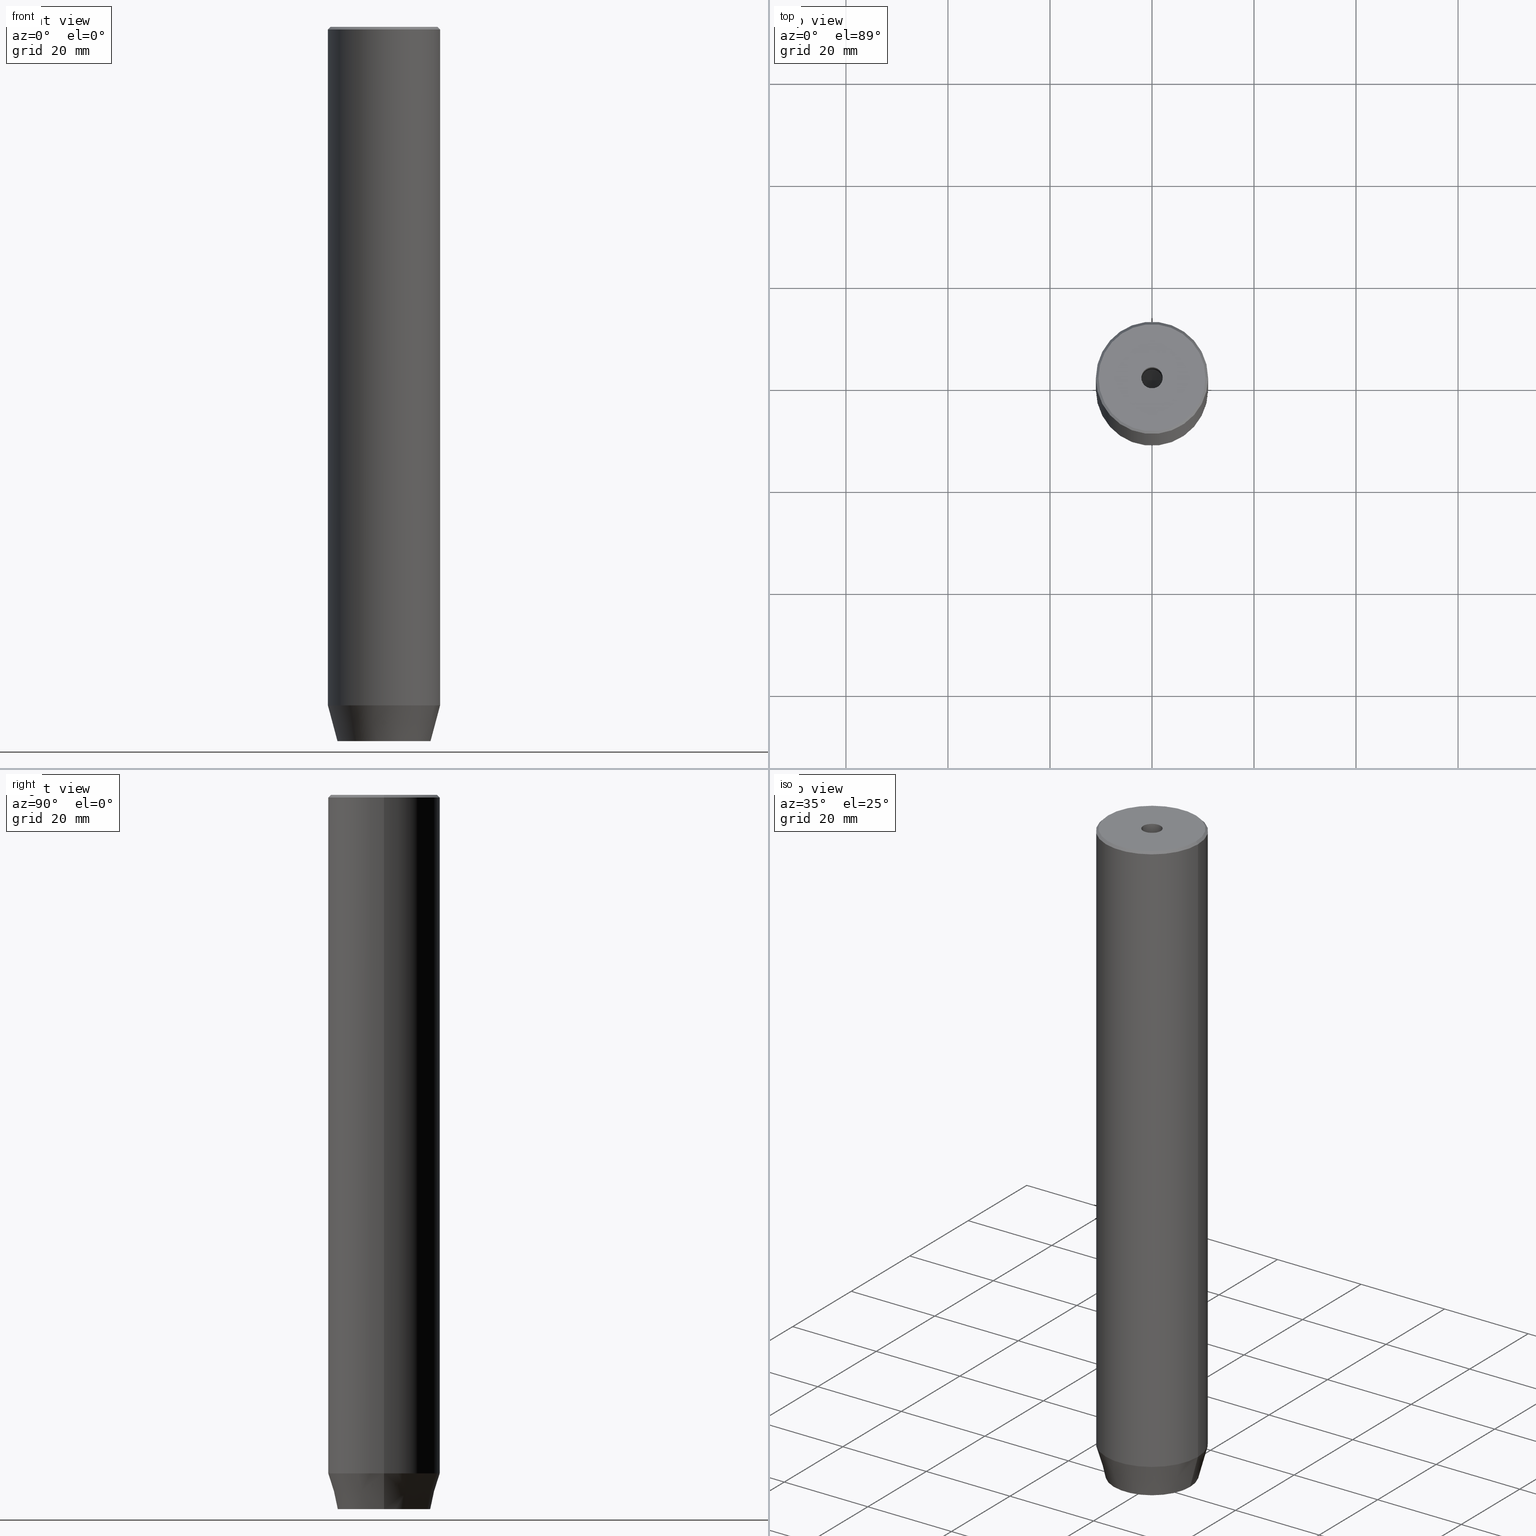
[diagram: canonical four-view strip — front | top / right | iso, engineering-drawing reading convention]
A machine part, canonical four-view strip (front | top / right | iso — engineering-drawing reading convention). The complete STEP part file that produces these views, byte-faithful:
ISO-10303-21;
HEADER;
FILE_DESCRIPTION (( 'STEP AP203' ),
    '1' );
FILE_NAME ('3e3e.STEP',
    '2024-01-02T17:19:05',
    ( '' ),
    ( '' ),
    'SwSTEP 2.0',
    'SolidWorks 2019',
    '' );
FILE_SCHEMA (( 'CONFIG_CONTROL_DESIGN' ));
ENDSEC;

DATA;
#1 = VECTOR ( 'NONE', #408, 1000.000000000000000 ) ;
#2 = CARTESIAN_POINT ( 'NONE',  ( 11.00000000000000000, 0.000000000000000000, -0.5000000000000004441 ) ) ;
#3 = CARTESIAN_POINT ( 'NONE',  ( 2.099999999999995648, 0.000000000000000000, -25.00000000000000000 ) ) ;
#4 = CARTESIAN_POINT ( 'NONE',  ( -10.49999999999999467, 0.000000000000000000, 0.000000000000000000 ) ) ;
#5 = DIRECTION ( 'NONE',  ( -0.000000000000000000, -0.000000000000000000, 1.000000000000000000 ) ) ;
#6 = ORIENTED_EDGE ( 'NONE', *, *, #397, .F. ) ;
#7 = LINE ( 'NONE', #325, #34 ) ;
#8 = VECTOR ( 'NONE', #85, 1000.000000000000000 ) ;
#9 = ORIENTED_EDGE ( 'NONE', *, *, #87, .F. ) ;
#10 = DIRECTION ( 'NONE',  ( -0.8660254037844384856, -0.5000000000000002220, 0.000000000000000000 ) ) ;
#11 = AXIS2_PLACEMENT_3D ( 'NONE', #274, #47, #311 ) ;
#12 = CARTESIAN_POINT ( 'NONE',  ( -4.000000000000000000, 2.309401076758503368, -140.0000000000000000 ) ) ;
#13 = DIRECTION ( 'NONE',  ( -0.000000000000000000, -0.000000000000000000, -1.000000000000000000 ) ) ;
#14 = VERTEX_POINT ( 'NONE', #2 ) ;
#15 = CARTESIAN_POINT ( 'NONE',  ( 11.00000000000000000, 0.000000000000000000, -133.0000000000000000 ) ) ;
#16 = DIRECTION ( 'NONE',  ( 1.000000000000000000, 0.000000000000000000, 0.000000000000000000 ) ) ;
#17 = ADVANCED_FACE ( 'NONE', ( #225 ), #418, .T. ) ;
#18 = DIRECTION ( 'NONE',  ( 1.000000000000000000, 0.000000000000000000, 0.000000000000000000 ) ) ;
#19 = CARTESIAN_POINT ( 'NONE',  ( 0.000000000000000000, 0.000000000000000000, -133.0000000000000000 ) ) ;
#20 = CIRCLE ( 'NONE', #469, 2.099999999999998757 ) ;
#21 = DIRECTION ( 'NONE',  ( -0.5000000000000003331, -0.8660254037844385966, 0.000000000000000000 ) ) ;
#22 = CC_DESIGN_PERSON_AND_ORGANIZATION_ASSIGNMENT ( #280, #392, ( #518 ) ) ;
#23 = FACE_OUTER_BOUND ( 'NONE', #294, .T. ) ;
#24 = APPROVAL_PERSON_ORGANIZATION ( #201, #407, #27 ) ;
#25 = CALENDAR_DATE ( 2024, 2, 1 ) ;
#26 = CARTESIAN_POINT ( 'NONE',  ( 0.000000000000000000, 0.000000000000000000, 0.000000000000000000 ) ) ;
#27 = APPROVAL_ROLE ( '' ) ;
#28 = DIRECTION ( 'NONE',  ( 0.000000000000000000, -0.000000000000000000, 1.000000000000000000 ) ) ;
#29 = ORIENTED_EDGE ( 'NONE', *, *, #260, .T. ) ;
#30 = DATE_TIME_ROLE ( 'creation_date' ) ;
#31 = PLANE ( 'NONE',  #229 ) ;
#32 = AXIS2_PLACEMENT_3D ( 'NONE', #90, #236, #429 ) ;
#33 = ORIENTED_EDGE ( 'NONE', *, *, #165, .T. ) ;
#34 = VECTOR ( 'NONE', #508, 1000.000000000000000 ) ;
#35 = CARTESIAN_POINT ( 'NONE',  ( 0.000000000000000000, 0.000000000000000000, -25.00000000000000000 ) ) ;
#36 = CARTESIAN_POINT ( 'NONE',  ( 4.336808689942017736E-16, -4.618802153517006737, -140.0000000000000000 ) ) ;
#37 = EDGE_LOOP ( 'NONE', ( #248, #82, #340, #298 ) ) ;
#38 = EDGE_CURVE ( 'NONE', #162, #14, #412, .T. ) ;
#39 = CARTESIAN_POINT ( 'NONE',  ( 0.000000000000000000, 0.000000000000000000, -133.0000000000000000 ) ) ;
#40 = VERTEX_POINT ( 'NONE', #368 ) ;
#41 = CLOSED_SHELL ( 'NONE', ( #531, #94, #564, #362, #153, #65, #386, #17, #126, #490, #281, #451, #175, #427, #580, #444, #415, #56, #207 ) ) ;
#42 = LINE ( 'NONE', #259, #1 ) ;
#43 = ORIENTED_EDGE ( 'NONE', *, *, #521, .F. ) ;
#44 = EDGE_CURVE ( 'NONE', #539, #162, #471, .T. ) ;
#45 = ADVANCED_BREP_SHAPE_REPRESENTATION ( '3e3e', ( #168, #174 ), #319 ) ;
#46 = VERTEX_POINT ( 'NONE', #58 ) ;
#47 = DIRECTION ( 'NONE',  ( 1.000000000000000000, 0.000000000000000000, -0.000000000000000000 ) ) ;
#48 = ORIENTED_EDGE ( 'NONE', *, *, #49, .F. ) ;
#49 = EDGE_CURVE ( 'NONE', #162, #497, #478, .T. ) ;
#50 = UNCERTAINTY_MEASURE_WITH_UNIT (LENGTH_MEASURE( 1.000000000000000082E-05 ), #95, 'distance_accuracy_value', 'NONE');
#51 = CC_DESIGN_PERSON_AND_ORGANIZATION_ASSIGNMENT ( #198, #486, ( #494 ) ) ;
#52 = AXIS2_PLACEMENT_3D ( 'NONE', #169, #534, #443 ) ;
#53 = CARTESIAN_POINT ( 'NONE',  ( -2.000000000000000888, -3.464101615137754386, -137.2000000000000171 ) ) ;
#54 = DIRECTION ( 'NONE',  ( -0.8660254037844385966, 0.5000000000000001110, 0.000000000000000000 ) ) ;
#55 = DIRECTION ( 'NONE',  ( 0.8571673007021108903, 0.000000000000000000, 0.5150380749100565980 ) ) ;
#56 = ADVANCED_FACE ( 'NONE', ( #484 ), #571, .F. ) ;
#57 = FACE_OUTER_BOUND ( 'NONE', #73, .T. ) ;
#58 = CARTESIAN_POINT ( 'NONE',  ( -2.099999999999995648, 2.571758278209436040E-16, -25.00000000000000000 ) ) ;
#59 = APPROVAL_STATUS ( 'not_yet_approved' ) ;
#60 = CARTESIAN_POINT ( 'NONE',  ( -11.00000000000000000, 1.347111479062088405E-15, -133.0000000000000000 ) ) ;
#61 = CIRCLE ( 'NONE', #422, 10.49999999999999467 ) ;
#62 = APPLICATION_PROTOCOL_DEFINITION ( 'international standard', 'config_control_design', 1994, #480 ) ;
#63 = DIRECTION ( 'NONE',  ( -0.000000000000000000, -0.000000000000000000, 1.000000000000000000 ) ) ;
#64 = CARTESIAN_POINT ( 'NONE',  ( 0.000000000000000000, 4.618802153517006737, -137.2000000000000171 ) ) ;
#65 = ADVANCED_FACE ( 'NONE', ( #344, #353 ), #536, .T. ) ;
#66 = VERTEX_POINT ( 'NONE', #349 ) ;
#67 = LOCAL_TIME ( 18, 19, 5.000000000000000000, #387 ) ;
#68 = CARTESIAN_POINT ( 'NONE',  ( -4.000000000000000000, 2.309401076758503368, -137.2000000000000171 ) ) ;
#69 = PERSON_AND_ORGANIZATION_ROLE ( 'creator' ) ;
#70 = DIRECTION ( 'NONE',  ( -0.000000000000000000, -0.000000000000000000, 1.000000000000000000 ) ) ;
#71 = ORIENTED_EDGE ( 'NONE', *, *, #381, .T. ) ;
#72 = AXIS2_PLACEMENT_3D ( 'NONE', #144, #525, #160 ) ;
#73 = EDGE_LOOP ( 'NONE', ( #43, #302, #401, #212 ) ) ;
#74 = VERTEX_POINT ( 'NONE', #394 ) ;
#75 = EDGE_CURVE ( 'NONE', #271, #14, #115, .T. ) ;
#76 = DIRECTION ( 'NONE',  ( 0.5000000000000003331, -0.8660254037844385966, 0.000000000000000000 ) ) ;
#77 = ORIENTED_EDGE ( 'NONE', *, *, #87, .T. ) ;
#78 = ORIENTED_EDGE ( 'NONE', *, *, #210, .T. ) ;
#79 = AXIS2_PLACEMENT_3D ( 'NONE', #500, #406, #258 ) ;
#80 = EDGE_CURVE ( 'NONE', #485, #447, #339, .T. ) ;
#81 = CARTESIAN_POINT ( 'NONE',  ( -10.49999999999999467, 0.000000000000000000, 0.000000000000000000 ) ) ;
#82 = ORIENTED_EDGE ( 'NONE', *, *, #300, .F. ) ;
#83 = ORIENTED_EDGE ( 'NONE', *, *, #512, .T. ) ;
#84 = DIRECTION ( 'NONE',  ( 0.8660254037844385966, -0.5000000000000001110, 0.000000000000000000 ) ) ;
#85 = DIRECTION ( 'NONE',  ( -0.000000000000000000, -0.000000000000000000, -1.000000000000000000 ) ) ;
#86 = LINE ( 'NONE', #369, #279 ) ;
#87 = EDGE_CURVE ( 'NONE', #497, #271, #343, .T. ) ;
#88 = AXIS2_PLACEMENT_3D ( 'NONE', #411, #417, #265 ) ;
#89 = LINE ( 'NONE', #125, #434 ) ;
#90 = CARTESIAN_POINT ( 'NONE',  ( 0.000000000000000000, 0.000000000000000000, -133.0000000000000000 ) ) ;
#91 = DIRECTION ( 'NONE',  ( -1.000000000000000000, 0.000000000000000000, 0.000000000000000000 ) ) ;
#92 = CARTESIAN_POINT ( 'NONE',  ( -4.000000000000000000, 2.309401076758503368, -137.2000000000000171 ) ) ;
#93 = CONICAL_SURFACE ( 'NONE', #161, 11.00000000000000000, 0.2617993877991500740 ) ;
#94 = ADVANCED_FACE ( 'NONE', ( #250 ), #538, .F. ) ;
#95 =( LENGTH_UNIT ( ) NAMED_UNIT ( * ) SI_UNIT ( .MILLI., .METRE. ) );
#96 = CARTESIAN_POINT ( 'NONE',  ( 0.000000000000000000, 4.618802153517006737, -137.2000000000000171 ) ) ;
#97 = PRODUCT_DEFINITION_SHAPE ( 'NONE', 'NONE',  #494 ) ;
#98 = CARTESIAN_POINT ( 'NONE',  ( -9.124355652982133691, 1.232261386766375507E-15, -140.0000000000000000 ) ) ;
#99 = APPROVAL ( #59, 'NEUR�EN�' ) ;
#100 = AXIS2_PLACEMENT_3D ( 'NONE', #152, #284, #481 ) ;
#101 = PERSON_AND_ORGANIZATION_ROLE ( 'design_owner' ) ;
#102 = FACE_OUTER_BOUND ( 'NONE', #110, .T. ) ;
#103 = ORIENTED_EDGE ( 'NONE', *, *, #44, .T. ) ;
#104 = APPROVAL_PERSON_ORGANIZATION ( #574, #99, #105 ) ;
#105 = APPROVAL_ROLE ( '' ) ;
#106 = CARTESIAN_POINT ( 'NONE',  ( 2.099999999999995648, 0.000000000000000000, -25.00000000000000000 ) ) ;
#107 = DIRECTION ( 'NONE',  ( 0.000000000000000000, -1.000000000000000000, 0.000000000000000000 ) ) ;
#108 = CARTESIAN_POINT ( 'NONE',  ( -2.000000000000000000, 3.464101615137754830, -140.0000000000000000 ) ) ;
#109 = FACE_OUTER_BOUND ( 'NONE', #289, .T. ) ;
#110 = EDGE_LOOP ( 'NONE', ( #445, #456, #83, #266 ) ) ;
#111 = DIRECTION ( 'NONE',  ( -0.000000000000000000, -0.000000000000000000, 1.000000000000000000 ) ) ;
#112 = DIRECTION ( 'NONE',  ( 0.8660254037844384856, 0.5000000000000002220, 0.000000000000000000 ) ) ;
#113 = EDGE_LOOP ( 'NONE', ( #130, #537, #370, #440 ) ) ;
#114 = EDGE_CURVE ( 'NONE', #66, #354, #42, .T. ) ;
#115 = CIRCLE ( 'NONE', #457, 11.00000000000000000 ) ;
#116 = ORIENTED_EDGE ( 'NONE', *, *, #572, .F. ) ;
#117 = CARTESIAN_POINT ( 'NONE',  ( -4.000000000000000000, 0.000000000000000000, -137.2000000000000171 ) ) ;
#118 = PRODUCT_RELATED_PRODUCT_CATEGORY ( 'detail', '', ( #295 ) ) ;
#119 = LOCAL_TIME ( 18, 19, 5.000000000000000000, #433 ) ;
#120 = ORIENTED_EDGE ( 'NONE', *, *, #121, .F. ) ;
#121 = EDGE_CURVE ( 'NONE', #322, #219, #360, .T. ) ;
#122 = EDGE_LOOP ( 'NONE', ( #214, #391 ) ) ;
#123 = ORIENTED_EDGE ( 'NONE', *, *, #114, .F. ) ;
#124 = DIRECTION ( 'NONE',  ( -1.000000000000000000, 0.000000000000000000, 0.000000000000000000 ) ) ;
#125 = CARTESIAN_POINT ( 'NONE',  ( 2.099999999999996980, 0.000000000000000000, 0.000000000000000000 ) ) ;
#126 = ADVANCED_FACE ( 'NONE', ( #356 ), #263, .T. ) ;
#127 = CYLINDRICAL_SURFACE ( 'NONE', #446, 2.099999999999996980 ) ;
#128 = AXIS2_PLACEMENT_3D ( 'NONE', #453, #129, #316 ) ;
#129 = DIRECTION ( 'NONE',  ( -0.000000000000000000, -0.000000000000000000, 1.000000000000000000 ) ) ;
#130 = ORIENTED_EDGE ( 'NONE', *, *, #381, .F. ) ;
#131 = CARTESIAN_POINT ( 'NONE',  ( -4.000000000000000000, -2.309401076758503368, -137.2000000000000171 ) ) ;
#132 = DIRECTION ( 'NONE',  ( 0.8660254037844387076, 0.5000000000000001110, 0.000000000000000000 ) ) ;
#133 = APPLICATION_PROTOCOL_DEFINITION ( 'international standard', 'config_control_design', 1994, #352 ) ;
#134 = EDGE_CURVE ( 'NONE', #365, #452, #61, .T. ) ;
#135 = AXIS2_PLACEMENT_3D ( 'NONE', #19, #139, #293 ) ;
#136 = CARTESIAN_POINT ( 'NONE',  ( 2.168404344971008868E-16, 4.618802153517006737, -140.0000000000000000 ) ) ;
#137 = DATE_TIME_ROLE ( 'classification_date' ) ;
#138 = DIRECTION ( 'NONE',  ( -0.000000000000000000, -0.000000000000000000, -1.000000000000000000 ) ) ;
#139 = DIRECTION ( 'NONE',  ( -0.000000000000000000, -0.000000000000000000, 1.000000000000000000 ) ) ;
#140 = DESIGN_CONTEXT ( 'detailed design', #480, 'design' ) ;
#141 = PERSON_AND_ORGANIZATION_ROLE ( 'design_supplier' ) ;
#142 = PLANE ( 'NONE',  #441 ) ;
#143 = ORIENTED_EDGE ( 'NONE', *, *, #288, .T. ) ;
#144 = CARTESIAN_POINT ( 'NONE',  ( 0.000000000000000000, 9.124355652982133691, -140.0000000000000000 ) ) ;
#145 = VECTOR ( 'NONE', #55, 1000.000000000000114 ) ;
#146 = DATE_AND_TIME ( #234, #426 ) ;
#147 = CARTESIAN_POINT ( 'NONE',  ( 11.00000000000000000, 0.000000000000000000, -133.0000000000000000 ) ) ;
#148 = DIRECTION ( 'NONE',  ( 1.000000000000000000, 0.000000000000000000, 0.000000000000000000 ) ) ;
#149 = ORIENTED_EDGE ( 'NONE', *, *, #197, .F. ) ;
#150 = APPROVAL_PERSON_ORGANIZATION ( #526, #256, #439 ) ;
#151 = CALENDAR_DATE ( 2024, 2, 1 ) ;
#152 = CARTESIAN_POINT ( 'NONE',  ( 0.000000000000000000, 0.000000000000000000, 0.000000000000000000 ) ) ;
#153 = ADVANCED_FACE ( 'NONE', ( #346 ), #196, .T. ) ;
#154 = DIRECTION ( 'NONE',  ( -1.000000000000000000, 0.000000000000000000, -0.000000000000000000 ) ) ;
#155 = ORIENTED_EDGE ( 'NONE', *, *, #269, .F. ) ;
#156 = DIRECTION ( 'NONE',  ( -0.000000000000000000, -0.000000000000000000, 1.000000000000000000 ) ) ;
#157 = CARTESIAN_POINT ( 'NONE',  ( 0.000000000000000000, 0.000000000000000000, 0.000000000000000000 ) ) ;
#158 = EDGE_LOOP ( 'NONE', ( #499, #6, #496, #78 ) ) ;
#159 = CARTESIAN_POINT ( 'NONE',  ( -11.00000000000000000, 1.347111479062088405E-15, -133.0000000000000000 ) ) ;
#160 = DIRECTION ( 'NONE',  ( -1.000000000000000000, 0.000000000000000000, -0.000000000000000000 ) ) ;
#161 = AXIS2_PLACEMENT_3D ( 'NONE', #39, #213, #402 ) ;
#162 = VERTEX_POINT ( 'NONE', #147 ) ;
#163 = VECTOR ( 'NONE', #468, 1000.000000000000000 ) ;
#164 = VECTOR ( 'NONE', #84, 1000.000000000000000 ) ;
#165 = EDGE_CURVE ( 'NONE', #166, #46, #241, .T. ) ;
#166 = VERTEX_POINT ( 'NONE', #388 ) ;
#167 = ORIENTED_EDGE ( 'NONE', *, *, #307, .F. ) ;
#168 = MANIFOLD_SOLID_BREP ( 'Vrt�k z�vitn�ku pro M5 z�vit1', #41 ) ;
#169 = CARTESIAN_POINT ( 'NONE',  ( 0.000000000000000000, 0.000000000000000000, -133.0000000000000000 ) ) ;
#170 = AXIS2_PLACEMENT_3D ( 'NONE', #358, #542, #498 ) ;
#171 = VECTOR ( 'NONE', #10, 1000.000000000000114 ) ;
#172 = DIRECTION ( 'NONE',  ( -0.000000000000000000, -0.000000000000000000, 1.000000000000000000 ) ) ;
#173 = CARTESIAN_POINT ( 'NONE',  ( 0.000000000000000000, 0.000000000000000000, 0.000000000000000000 ) ) ;
#174 = AXIS2_PLACEMENT_3D ( 'NONE', #472, #380, #379 ) ;
#175 = ADVANCED_FACE ( 'NONE', ( #568 ), #142, .F. ) ;
#176 = ORIENTED_EDGE ( 'NONE', *, *, #134, .T. ) ;
#177 = CARTESIAN_POINT ( 'NONE',  ( 0.000000000000000000, 0.000000000000000000, -0.5000000000000004441 ) ) ;
#178 = ORIENTED_EDGE ( 'NONE', *, *, #38, .F. ) ;
#179 = DIRECTION ( 'NONE',  ( -0.000000000000000000, -0.000000000000000000, 1.000000000000000000 ) ) ;
#180 = CARTESIAN_POINT ( 'NONE',  ( 0.000000000000000000, 0.000000000000000000, 0.000000000000000000 ) ) ;
#181 = CARTESIAN_POINT ( 'NONE',  ( 2.099999999999998757, 0.000000000000000000, -1.990051048614449116E-16 ) ) ;
#182 = LINE ( 'NONE', #466, #164 ) ;
#183 = VECTOR ( 'NONE', #132, 999.9999999999998863 ) ;
#184 = CARTESIAN_POINT ( 'NONE',  ( -2.000000000000000888, -3.464101615137754386, -140.0000000000000000 ) ) ;
#185 = ORIENTED_EDGE ( 'NONE', *, *, #479, .T. ) ;
#186 = EDGE_CURVE ( 'NONE', #447, #296, #337, .T. ) ;
#187 = CIRCLE ( 'NONE', #88, 2.099999999999995648 ) ;
#188 = LINE ( 'NONE', #53, #304 ) ;
#189 = EDGE_LOOP ( 'NONE', ( #345, #584, #361, #255 ) ) ;
#190 = FACE_OUTER_BOUND ( 'NONE', #189, .T. ) ;
#191 = DIRECTION ( 'NONE',  ( 0.2588190451025213501, 0.000000000000000000, 0.9659258262890680902 ) ) ;
#192 = SECURITY_CLASSIFICATION_LEVEL ( 'unclassified' ) ;
#193 = DIRECTION ( 'NONE',  ( 0.8660254037844385966, -0.5000000000000001110, 0.000000000000000000 ) ) ;
#194 = VECTOR ( 'NONE', #111, 1000.000000000000000 ) ;
#195 = CARTESIAN_POINT ( 'NONE',  ( -2.000000000000000000, 3.464101615137754830, -137.2000000000000171 ) ) ;
#196 = CYLINDRICAL_SURFACE ( 'NONE', #399, 11.00000000000000000 ) ;
#197 = EDGE_CURVE ( 'NONE', #404, #462, #20, .T. ) ;
#198 = PERSON_AND_ORGANIZATION ( #306, #268 ) ;
#199 = CARTESIAN_POINT ( 'NONE',  ( -2.099999999999998757, 2.571758278209440478E-16, -1.990051048614449116E-16 ) ) ;
#200 = CARTESIAN_POINT ( 'NONE',  ( 2.000000000000000888, -3.464101615137754386, -137.2000000000000171 ) ) ;
#201 = PERSON_AND_ORGANIZATION ( #306, #268 ) ;
#202 = CARTESIAN_POINT ( 'NONE',  ( 0.000000000000000000, 0.000000000000000000, -1.990051048614449116E-16 ) ) ;
#203 = ORIENTED_EDGE ( 'NONE', *, *, #227, .F. ) ;
#204 = CIRCLE ( 'NONE', #170, 9.124355652982133691 ) ;
#205 = PERSON_AND_ORGANIZATION ( #306, #268 ) ;
#206 = CARTESIAN_POINT ( 'NONE',  ( 0.000000000000000000, 0.000000000000000000, -137.2000000000000171 ) ) ;
#207 = ADVANCED_FACE ( 'NONE', ( #102 ), #393, .F. ) ;
#208 = ORIENTED_EDGE ( 'NONE', *, *, #351, .F. ) ;
#209 = CC_DESIGN_APPROVAL ( #99, ( #287 ) ) ;
#210 = EDGE_CURVE ( 'NONE', #398, #447, #329, .T. ) ;
#211 = ORIENTED_EDGE ( 'NONE', *, *, #186, .F. ) ;
#212 = ORIENTED_EDGE ( 'NONE', *, *, #479, .F. ) ;
#213 = DIRECTION ( 'NONE',  ( -0.000000000000000000, -0.000000000000000000, 1.000000000000000000 ) ) ;
#214 = ORIENTED_EDGE ( 'NONE', *, *, #327, .F. ) ;
#215 = CONICAL_SURFACE ( 'NONE', #473, 10.49999999999999467, 0.7853981633974517207 ) ;
#216 = PLANE ( 'NONE',  #286 ) ;
#217 = ORIENTED_EDGE ( 'NONE', *, *, #555, .F. ) ;
#218 = EDGE_LOOP ( 'NONE', ( #578, #77, #569, #178 ) ) ;
#219 = VERTEX_POINT ( 'NONE', #68 ) ;
#220 = DIRECTION ( 'NONE',  ( 0.000000000000000000, 0.000000000000000000, -1.000000000000000000 ) ) ;
#221 = VECTOR ( 'NONE', #576, 999.9999999999998863 ) ;
#222 = EDGE_CURVE ( 'NONE', #462, #404, #363, .T. ) ;
#223 =( NAMED_UNIT ( * ) PLANE_ANGLE_UNIT ( ) SI_UNIT ( $, .RADIAN. ) );
#224 = CARTESIAN_POINT ( 'NONE',  ( -11.00000000000000000, 1.347111479062088405E-15, -0.5000000000000004441 ) ) ;
#225 = FACE_OUTER_BOUND ( 'NONE', #254, .T. ) ;
#226 = DIRECTION ( 'NONE',  ( 1.000000000000000000, 0.000000000000000000, 0.000000000000000000 ) ) ;
#227 = EDGE_CURVE ( 'NONE', #166, #532, #562, .T. ) ;
#228 = VERTEX_POINT ( 'NONE', #235 ) ;
#229 = AXIS2_PLACEMENT_3D ( 'NONE', #206, #342, #154 ) ;
#230 = CARTESIAN_POINT ( 'NONE',  ( -4.000000000000000000, -2.309401076758503368, -140.0000000000000000 ) ) ;
#231 = DIRECTION ( 'NONE',  ( 0.5000000000000001110, 0.8660254037844385966, -0.000000000000000000 ) ) ;
#232 = CC_DESIGN_SECURITY_CLASSIFICATION ( #518, ( #287 ) ) ;
#233 = DIRECTION ( 'NONE',  ( -0.8660254037844384856, 0.5000000000000002220, 0.000000000000000000 ) ) ;
#234 = CALENDAR_DATE ( 2024, 2, 1 ) ;
#235 = CARTESIAN_POINT ( 'NONE',  ( 4.000000000000000000, -2.309401076758502480, -137.2000000000000171 ) ) ;
#236 = DIRECTION ( 'NONE',  ( -0.000000000000000000, -0.000000000000000000, 1.000000000000000000 ) ) ;
#237 = DIRECTION ( 'NONE',  ( -0.2588190451025213501, 3.169619151431772337E-17, 0.9659258262890680902 ) ) ;
#238 = EDGE_CURVE ( 'NONE', #489, #497, #475, .T. ) ;
#239 = AXIS2_PLACEMENT_3D ( 'NONE', #488, #495, #400 ) ;
#240 = APPROVAL_STATUS ( 'not_yet_approved' ) ;
#241 = LINE ( 'NONE', #436, #376 ) ;
#242 = ORIENTED_EDGE ( 'NONE', *, *, #333, .F. ) ;
#243 = COORDINATED_UNIVERSAL_TIME_OFFSET ( 1, 0, .AHEAD. ) ;
#244 = EDGE_LOOP ( 'NONE', ( #350, #176 ) ) ;
#245 = EDGE_CURVE ( 'NONE', #452, #365, #326, .T. ) ;
#246 = COORDINATED_UNIVERSAL_TIME_OFFSET ( 1, 0, .AHEAD. ) ;
#247 = CIRCLE ( 'NONE', #128, 2.099999999999995648 ) ;
#248 = ORIENTED_EDGE ( 'NONE', *, *, #467, .T. ) ;
#249 = FACE_OUTER_BOUND ( 'NONE', #261, .T. ) ;
#250 = FACE_OUTER_BOUND ( 'NONE', #432, .T. ) ;
#251 = DIRECTION ( 'NONE',  ( -1.000000000000000000, 0.000000000000000000, 0.000000000000000000 ) ) ;
#252 = ORIENTED_EDGE ( 'NONE', *, *, #38, .T. ) ;
#253 = FACE_OUTER_BOUND ( 'NONE', #364, .T. ) ;
#254 = EDGE_LOOP ( 'NONE', ( #9, #29, #252, #185 ) ) ;
#255 = ORIENTED_EDGE ( 'NONE', *, *, #587, .F. ) ;
#256 = APPROVAL ( #240, 'NEUR�EN�' ) ;
#257 = VECTOR ( 'NONE', #13, 1000.000000000000000 ) ;
#258 = DIRECTION ( 'NONE',  ( 1.000000000000000000, 0.000000000000000000, 0.000000000000000000 ) ) ;
#259 = CARTESIAN_POINT ( 'NONE',  ( 4.336808689942017736E-16, -4.618802153517006737, -137.2000000000000171 ) ) ;
#260 = EDGE_CURVE ( 'NONE', #497, #162, #450, .T. ) ;
#261 = EDGE_LOOP ( 'NONE', ( #299, #548, #507, #579, #309, #395 ) ) ;
#262 = DIRECTION ( 'NONE',  ( -0.7071067811865500152, 0.000000000000000000, -0.7071067811865451302 ) ) ;
#263 = CONICAL_SURFACE ( 'NONE', #52, 11.00000000000000000, 0.2617993877991500740 ) ;
#264 = LINE ( 'NONE', #184, #560 ) ;
#265 = DIRECTION ( 'NONE',  ( 1.000000000000000000, 0.000000000000000000, 0.000000000000000000 ) ) ;
#266 = ORIENTED_EDGE ( 'NONE', *, *, #222, .T. ) ;
#267 = LINE ( 'NONE', #131, #367 ) ;
#268 = ORGANIZATION ( 'NEUR�EN�', 'NEUR�EN�', '' ) ;
#269 = EDGE_CURVE ( 'NONE', #219, #398, #416, .T. ) ;
#270 = CARTESIAN_POINT ( 'NONE',  ( 4.000000000000000000, 2.309401076758503368, -140.0000000000000000 ) ) ;
#271 = VERTEX_POINT ( 'NONE', #224 ) ;
#272 = CC_DESIGN_DATE_AND_TIME_ASSIGNMENT ( #567, #137, ( #518 ) ) ;
#273 = FACE_OUTER_BOUND ( 'NONE', #547, .T. ) ;
#274 = CARTESIAN_POINT ( 'NONE',  ( 4.000000000000000000, 0.000000000000000000, -137.2000000000000171 ) ) ;
#275 = VECTOR ( 'NONE', #138, 1000.000000000000000 ) ;
#276 = LINE ( 'NONE', #423, #491 ) ;
#277 = FACE_OUTER_BOUND ( 'NONE', #37, .T. ) ;
#278 = DIRECTION ( 'NONE',  ( -0.000000000000000000, -0.000000000000000000, 1.000000000000000000 ) ) ;
#279 = VECTOR ( 'NONE', #179, 1000.000000000000000 ) ;
#280 = PERSON_AND_ORGANIZATION ( #306, #268 ) ;
#281 = ADVANCED_FACE ( 'NONE', ( #273 ), #552, .F. ) ;
#282 = CARTESIAN_POINT ( 'NONE',  ( 4.000000000000000000, 2.309401076758503368, -137.2000000000000171 ) ) ;
#283 = AXIS2_PLACEMENT_3D ( 'NONE', #35, #301, #312 ) ;
#284 = DIRECTION ( 'NONE',  ( -0.000000000000000000, -0.000000000000000000, 1.000000000000000000 ) ) ;
#285 = PLANE ( 'NONE',  #297 ) ;
#286 = AXIS2_PLACEMENT_3D ( 'NONE', #355, #124, #503 ) ;
#287 = PRODUCT_DEFINITION_FORMATION_WITH_SPECIFIED_SOURCE ( 'LIBOVOLN�', '', #295, .NOT_KNOWN. ) ;
#288 = EDGE_CURVE ( 'NONE', #74, #354, #276, .T. ) ;
#289 = EDGE_LOOP ( 'NONE', ( #143, #123, #242, #566 ) ) ;
#290 = CARTESIAN_POINT ( 'NONE',  ( 0.000000000000000000, 0.000000000000000000, -1.990051048614449116E-16 ) ) ;
#291 = VERTEX_POINT ( 'NONE', #230 ) ;
#292 = PLANE ( 'NONE',  #492 ) ;
#293 = DIRECTION ( 'NONE',  ( 1.000000000000000000, 0.000000000000000000, 0.000000000000000000 ) ) ;
#294 = EDGE_LOOP ( 'NONE', ( #577, #449, #120, #454 ) ) ;
#295 = PRODUCT ( '3e3e', '3e3e', '', ( #321 ) ) ;
#296 = VERTEX_POINT ( 'NONE', #270 ) ;
#297 = AXIS2_PLACEMENT_3D ( 'NONE', #157, #28, #487 ) ;
#298 = ORIENTED_EDGE ( 'NONE', *, *, #397, .T. ) ;
#299 = ORIENTED_EDGE ( 'NONE', *, *, #269, .T. ) ;
#300 = EDGE_CURVE ( 'NONE', #228, #74, #505, .T. ) ;
#301 = DIRECTION ( 'NONE',  ( -0.000000000000000000, -0.000000000000000000, 1.000000000000000000 ) ) ;
#302 = ORIENTED_EDGE ( 'NONE', *, *, #245, .F. ) ;
#303 = EDGE_LOOP ( 'NONE', ( #541, #414, #103, #546 ) ) ;
#304 = VECTOR ( 'NONE', #233, 1000.000000000000114 ) ;
#305 = ORIENTED_EDGE ( 'NONE', *, *, #459, .T. ) ;
#306 = PERSON ( 'NEUR�EN�', 'NEUR�EN�', 'NEUR�EN�', ('NEUR�EN�'), ('NEUR�EN�'), ('NEUR�EN�') ) ;
#307 = EDGE_CURVE ( 'NONE', #354, #291, #264, .T. ) ;
#308 = ORIENTED_EDGE ( 'NONE', *, *, #44, .F. ) ;
#309 = ORIENTED_EDGE ( 'NONE', *, *, #351, .T. ) ;
#310 = ORIENTED_EDGE ( 'NONE', *, *, #307, .T. ) ;
#311 = DIRECTION ( 'NONE',  ( -0.000000000000000000, 0.000000000000000000, -1.000000000000000000 ) ) ;
#312 = DIRECTION ( 'NONE',  ( 1.000000000000000000, 0.000000000000000000, 0.000000000000000000 ) ) ;
#313 = DIRECTION ( 'NONE',  ( -0.8660254037844385966, -0.4999999999999999445, 0.000000000000000000 ) ) ;
#314 = FACE_OUTER_BOUND ( 'NONE', #113, .T. ) ;
#315 = VECTOR ( 'NONE', #581, 1000.000000000000000 ) ;
#316 = DIRECTION ( 'NONE',  ( 1.000000000000000000, 0.000000000000000000, 0.000000000000000000 ) ) ;
#317 = DIRECTION ( 'NONE',  ( 0.000000000000000000, 0.000000000000000000, -1.000000000000000000 ) ) ;
#318 = LINE ( 'NONE', #511, #366 ) ;
#319 =( GEOMETRIC_REPRESENTATION_CONTEXT ( 3 ) GLOBAL_UNCERTAINTY_ASSIGNED_CONTEXT ( ( #50 ) ) GLOBAL_UNIT_ASSIGNED_CONTEXT ( ( #95, #223, #425 ) ) REPRESENTATION_CONTEXT ( 'NONE', 'WORKASPACE' ) );
#320 = CARTESIAN_POINT ( 'NONE',  ( 2.000000000000000888, -3.464101615137754386, -137.2000000000000171 ) ) ;
#321 = MECHANICAL_CONTEXT ( 'NONE', #352, 'mechanical' ) ;
#322 = VERTEX_POINT ( 'NONE', #460 ) ;
#323 = DIRECTION ( 'NONE',  ( -0.8660254037844384856, -0.5000000000000002220, 0.000000000000000000 ) ) ;
#324 = DIRECTION ( 'NONE',  ( 1.000000000000000000, 0.000000000000000000, 0.000000000000000000 ) ) ;
#325 = CARTESIAN_POINT ( 'NONE',  ( -4.000000000000000000, 0.000000000000000000, -140.0000000000000000 ) ) ;
#326 = CIRCLE ( 'NONE', #545, 10.49999999999999467 ) ;
#327 = EDGE_CURVE ( 'NONE', #539, #489, #524, .T. ) ;
#328 = CALENDAR_DATE ( 2024, 2, 1 ) ;
#329 = LINE ( 'NONE', #96, #275 ) ;
#330 = ORIENTED_EDGE ( 'NONE', *, *, #557, .T. ) ;
#331 = CC_DESIGN_PERSON_AND_ORGANIZATION_ASSIGNMENT ( #559, #101, ( #295 ) ) ;
#332 = COORDINATED_UNIVERSAL_TIME_OFFSET ( 1, 0, .AHEAD. ) ;
#333 = EDGE_CURVE ( 'NONE', #228, #66, #419, .T. ) ;
#334 = VECTOR ( 'NONE', #477, 1000.000000000000000 ) ;
#335 = ORIENTED_EDGE ( 'NONE', *, *, #327, .T. ) ;
#336 = APPROVAL_DATE_TIME ( #146, #99 ) ;
#337 = LINE ( 'NONE', #523, #553 ) ;
#338 = LOCAL_TIME ( 18, 19, 5.000000000000000000, #332 ) ;
#339 = LINE ( 'NONE', #108, #221 ) ;
#340 = ORIENTED_EDGE ( 'NONE', *, *, #405, .F. ) ;
#341 = SHAPE_DEFINITION_REPRESENTATION ( #97, #45 ) ;
#342 = DIRECTION ( 'NONE',  ( 0.000000000000000000, 0.000000000000000000, -1.000000000000000000 ) ) ;
#343 = LINE ( 'NONE', #385, #194 ) ;
#344 = FACE_BOUND ( 'NONE', #585, .T. ) ;
#345 = ORIENTED_EDGE ( 'NONE', *, *, #134, .F. ) ;
#346 = FACE_OUTER_BOUND ( 'NONE', #218, .T. ) ;
#347 = CARTESIAN_POINT ( 'NONE',  ( 4.000000000000000000, 0.000000000000000000, -137.2000000000000171 ) ) ;
#348 = VECTOR ( 'NONE', #172, 1000.000000000000000 ) ;
#349 = CARTESIAN_POINT ( 'NONE',  ( 4.336808689942017736E-16, -4.618802153517006737, -137.2000000000000171 ) ) ;
#350 = ORIENTED_EDGE ( 'NONE', *, *, #245, .T. ) ;
#351 = EDGE_CURVE ( 'NONE', #66, #322, #188, .T. ) ;
#352 = APPLICATION_CONTEXT ( 'configuration controlled 3d designs of mechanical parts and assemblies' ) ;
#353 = FACE_OUTER_BOUND ( 'NONE', #122, .T. ) ;
#354 = VERTEX_POINT ( 'NONE', #36 ) ;
#355 = CARTESIAN_POINT ( 'NONE',  ( -4.000000000000000000, 0.000000000000000000, -137.2000000000000171 ) ) ;
#356 = FACE_OUTER_BOUND ( 'NONE', #303, .T. ) ;
#357 = ORIENTED_EDGE ( 'NONE', *, *, #467, .F. ) ;
#358 = CARTESIAN_POINT ( 'NONE',  ( 0.000000000000000000, 0.000000000000000000, -140.0000000000000000 ) ) ;
#359 = EDGE_LOOP ( 'NONE', ( #310, #116, #208, #573 ) ) ;
#360 = LINE ( 'NONE', #117, #315 ) ;
#361 = ORIENTED_EDGE ( 'NONE', *, *, #75, .F. ) ;
#362 = ADVANCED_FACE ( 'NONE', ( #253 ), #93, .T. ) ;
#363 = CIRCLE ( 'NONE', #442, 2.099999999999998757 ) ;
#364 = EDGE_LOOP ( 'NONE', ( #335, #455, #48, #308 ) ) ;
#365 = VERTEX_POINT ( 'NONE', #583 ) ;
#366 = VECTOR ( 'NONE', #375, 1000.000000000000114 ) ;
#367 = VECTOR ( 'NONE', #463, 1000.000000000000000 ) ;
#368 = CARTESIAN_POINT ( 'NONE',  ( 4.000000000000000000, 2.309401076758503368, -137.2000000000000171 ) ) ;
#369 = CARTESIAN_POINT ( 'NONE',  ( -2.099999999999996980, 2.571758278209438013E-16, 0.000000000000000000 ) ) ;
#370 = ORIENTED_EDGE ( 'NONE', *, *, #197, .T. ) ;
#371 = DIRECTION ( 'NONE',  ( 1.000000000000000000, 0.000000000000000000, 0.000000000000000000 ) ) ;
#372 = LINE ( 'NONE', #378, #163 ) ;
#373 = EDGE_CURVE ( 'NONE', #489, #539, #204, .T. ) ;
#374 = ORIENTED_EDGE ( 'NONE', *, *, #288, .F. ) ;
#375 = DIRECTION ( 'NONE',  ( 0.7071067811865500152, 8.659560562354962440E-17, -0.7071067811865451302 ) ) ;
#376 = VECTOR ( 'NONE', #520, 1000.000000000000114 ) ;
#377 = PLANE ( 'NONE',  #482 ) ;
#378 = CARTESIAN_POINT ( 'NONE',  ( 4.000000000000000000, 0.000000000000000000, -140.0000000000000000 ) ) ;
#379 = DIRECTION ( 'NONE',  ( 1.000000000000000000, 0.000000000000000000, 0.000000000000000000 ) ) ;
#380 = DIRECTION ( 'NONE',  ( 0.000000000000000000, 0.000000000000000000, 1.000000000000000000 ) ) ;
#381 = EDGE_CURVE ( 'NONE', #46, #532, #247, .T. ) ;
#382 = VECTOR ( 'NONE', #107, 1000.000000000000000 ) ;
#383 = CARTESIAN_POINT ( 'NONE',  ( -2.000000000000000000, 3.464101615137754830, -137.2000000000000171 ) ) ;
#384 = CARTESIAN_POINT ( 'NONE',  ( -2.000000000000000888, -3.464101615137754386, -137.2000000000000171 ) ) ;
#385 = CARTESIAN_POINT ( 'NONE',  ( -11.00000000000000000, 1.347111479062088405E-15, 0.000000000000000000 ) ) ;
#386 = ADVANCED_FACE ( 'NONE', ( #556, #529 ), #285, .T. ) ;
#387 = COORDINATED_UNIVERSAL_TIME_OFFSET ( 1, 0, .AHEAD. ) ;
#388 = CARTESIAN_POINT ( 'NONE',  ( -6.432287649943602629E-15, 0.000000000000000000, -26.26180729995787999 ) ) ;
#389 = LINE ( 'NONE', #347, #382 ) ;
#390 = CARTESIAN_POINT ( 'NONE',  ( 0.000000000000000000, 0.000000000000000000, -0.5000000000000004441 ) ) ;
#391 = ORIENTED_EDGE ( 'NONE', *, *, #373, .F. ) ;
#392 = PERSON_AND_ORGANIZATION_ROLE ( 'classification_officer' ) ;
#393 = CYLINDRICAL_SURFACE ( 'NONE', #100, 2.099999999999996980 ) ;
#394 = CARTESIAN_POINT ( 'NONE',  ( 4.000000000000000000, -2.309401076758502480, -140.0000000000000000 ) ) ;
#395 = ORIENTED_EDGE ( 'NONE', *, *, #121, .T. ) ;
#396 = DIRECTION ( 'NONE',  ( 1.000000000000000000, 0.000000000000000000, 0.000000000000000000 ) ) ;
#397 = EDGE_CURVE ( 'NONE', #40, #296, #483, .T. ) ;
#398 = VERTEX_POINT ( 'NONE', #64 ) ;
#399 = AXIS2_PLACEMENT_3D ( 'NONE', #26, #63, #575 ) ;
#400 = DIRECTION ( 'NONE',  ( 1.000000000000000000, 0.000000000000000000, 0.000000000000000000 ) ) ;
#401 = ORIENTED_EDGE ( 'NONE', *, *, #587, .T. ) ;
#402 = DIRECTION ( 'NONE',  ( 1.000000000000000000, 0.000000000000000000, 0.000000000000000000 ) ) ;
#403 = CC_DESIGN_APPROVAL ( #407, ( #518 ) ) ;
#404 = VERTEX_POINT ( 'NONE', #199 ) ;
#405 = EDGE_CURVE ( 'NONE', #40, #228, #389, .T. ) ;
#406 = DIRECTION ( 'NONE',  ( -0.000000000000000000, -0.000000000000000000, 1.000000000000000000 ) ) ;
#407 = APPROVAL ( #476, 'NEUR�EN�' ) ;
#408 = DIRECTION ( 'NONE',  ( -0.000000000000000000, -0.000000000000000000, -1.000000000000000000 ) ) ;
#409 = EDGE_LOOP ( 'NONE', ( #465, #149 ) ) ;
#410 = VECTOR ( 'NONE', #191, 1000.000000000000000 ) ;
#411 = CARTESIAN_POINT ( 'NONE',  ( 0.000000000000000000, 0.000000000000000000, -25.00000000000000000 ) ) ;
#412 = LINE ( 'NONE', #586, #348 ) ;
#413 = DIRECTION ( 'NONE',  ( -0.000000000000000000, -0.000000000000000000, 1.000000000000000000 ) ) ;
#414 = ORIENTED_EDGE ( 'NONE', *, *, #373, .T. ) ;
#415 = ADVANCED_FACE ( 'NONE', ( #249 ), #31, .T. ) ;
#416 = LINE ( 'NONE', #195, #183 ) ;
#417 = DIRECTION ( 'NONE',  ( -0.000000000000000000, -0.000000000000000000, 1.000000000000000000 ) ) ;
#418 = CYLINDRICAL_SURFACE ( 'NONE', #79, 11.00000000000000000 ) ;
#419 = LINE ( 'NONE', #320, #171 ) ;
#420 = ORIENTED_EDGE ( 'NONE', *, *, #210, .F. ) ;
#421 = DIRECTION ( 'NONE',  ( -0.000000000000000000, -0.000000000000000000, 1.000000000000000000 ) ) ;
#422 = AXIS2_PLACEMENT_3D ( 'NONE', #543, #156, #396 ) ;
#423 = CARTESIAN_POINT ( 'NONE',  ( 2.000000000000000888, -3.464101615137754386, -140.0000000000000000 ) ) ;
#424 = DIRECTION ( 'NONE',  ( 0.000000000000000000, 0.000000000000000000, -1.000000000000000000 ) ) ;
#425 =( NAMED_UNIT ( * ) SI_UNIT ( $, .STERADIAN. ) SOLID_ANGLE_UNIT ( ) );
#426 = LOCAL_TIME ( 18, 19, 5.000000000000000000, #246 ) ;
#427 = ADVANCED_FACE ( 'NONE', ( #109 ), #292, .F. ) ;
#428 = DATE_AND_TIME ( #328, #461 ) ;
#429 = DIRECTION ( 'NONE',  ( 1.000000000000000000, 0.000000000000000000, 0.000000000000000000 ) ) ;
#430 = CARTESIAN_POINT ( 'NONE',  ( 0.000000000000000000, 0.000000000000000000, 0.000000000000000000 ) ) ;
#431 = AXIS2_PLACEMENT_3D ( 'NONE', #383, #563, #313 ) ;
#432 = EDGE_LOOP ( 'NONE', ( #203, #33, #71 ) ) ;
#433 = COORDINATED_UNIVERSAL_TIME_OFFSET ( 1, 0, .AHEAD. ) ;
#434 = VECTOR ( 'NONE', #421, 1000.000000000000000 ) ;
#435 = APPROVAL_DATE_TIME ( #570, #256 ) ;
#436 = CARTESIAN_POINT ( 'NONE',  ( -2.099999999999995648, 2.571758278209436040E-16, -25.00000000000000000 ) ) ;
#437 = ORIENTED_EDGE ( 'NONE', *, *, #165, .F. ) ;
#438 = ORIENTED_EDGE ( 'NONE', *, *, #227, .T. ) ;
#439 = APPROVAL_ROLE ( '' ) ;
#440 = ORIENTED_EDGE ( 'NONE', *, *, #512, .F. ) ;
#441 = AXIS2_PLACEMENT_3D ( 'NONE', #384, #21, #527 ) ;
#442 = AXIS2_PLACEMENT_3D ( 'NONE', #202, #278, #474 ) ;
#443 = DIRECTION ( 'NONE',  ( 1.000000000000000000, 0.000000000000000000, 0.000000000000000000 ) ) ;
#444 = ADVANCED_FACE ( 'NONE', ( #522 ), #377, .F. ) ;
#445 = ORIENTED_EDGE ( 'NONE', *, *, #549, .F. ) ;
#446 = AXIS2_PLACEMENT_3D ( 'NONE', #513, #413, #371 ) ;
#447 = VERTEX_POINT ( 'NONE', #136 ) ;
#448 = CC_DESIGN_PERSON_AND_ORGANIZATION_ASSIGNMENT ( #205, #141, ( #287 ) ) ;
#449 = ORIENTED_EDGE ( 'NONE', *, *, #557, .F. ) ;
#450 = CIRCLE ( 'NONE', #32, 11.00000000000000000 ) ;
#451 = ADVANCED_FACE ( 'NONE', ( #23 ), #216, .F. ) ;
#452 = VERTEX_POINT ( 'NONE', #81 ) ;
#453 = CARTESIAN_POINT ( 'NONE',  ( 0.000000000000000000, 0.000000000000000000, -25.00000000000000000 ) ) ;
#454 = ORIENTED_EDGE ( 'NONE', *, *, #572, .T. ) ;
#455 = ORIENTED_EDGE ( 'NONE', *, *, #238, .T. ) ;
#456 = ORIENTED_EDGE ( 'NONE', *, *, #459, .F. ) ;
#457 = AXIS2_PLACEMENT_3D ( 'NONE', #390, #535, #148 ) ;
#458 = LINE ( 'NONE', #4, #582 ) ;
#459 = EDGE_CURVE ( 'NONE', #532, #46, #187, .T. ) ;
#460 = CARTESIAN_POINT ( 'NONE',  ( -4.000000000000000000, -2.309401076758503368, -137.2000000000000171 ) ) ;
#461 = LOCAL_TIME ( 18, 19, 5.000000000000000000, #243 ) ;
#462 = VERTEX_POINT ( 'NONE', #181 ) ;
#463 = DIRECTION ( 'NONE',  ( -0.000000000000000000, -0.000000000000000000, -1.000000000000000000 ) ) ;
#464 = CARTESIAN_POINT ( 'NONE',  ( 4.000000000000000000, -2.309401076758502480, -137.2000000000000171 ) ) ;
#465 = ORIENTED_EDGE ( 'NONE', *, *, #222, .F. ) ;
#466 = CARTESIAN_POINT ( 'NONE',  ( 2.000000000000000444, 3.464101615137754386, -137.2000000000000171 ) ) ;
#467 = EDGE_CURVE ( 'NONE', #296, #74, #372, .T. ) ;
#468 = DIRECTION ( 'NONE',  ( 0.000000000000000000, -1.000000000000000000, 0.000000000000000000 ) ) ;
#469 = AXIS2_PLACEMENT_3D ( 'NONE', #290, #70, #16 ) ;
#470 = CARTESIAN_POINT ( 'NONE',  ( 0.000000000000000000, 0.000000000000000000, -140.0000000000000000 ) ) ;
#471 = LINE ( 'NONE', #15, #410 ) ;
#472 = CARTESIAN_POINT ( 'NONE',  ( 0.000000000000000000, 0.000000000000000000, 0.000000000000000000 ) ) ;
#473 = AXIS2_PLACEMENT_3D ( 'NONE', #180, #317, #251 ) ;
#474 = DIRECTION ( 'NONE',  ( 1.000000000000000000, 0.000000000000000000, 0.000000000000000000 ) ) ;
#475 = LINE ( 'NONE', #60, #506 ) ;
#476 = APPROVAL_STATUS ( 'not_yet_approved' ) ;
#477 = DIRECTION ( 'NONE',  ( -0.000000000000000000, -0.000000000000000000, -1.000000000000000000 ) ) ;
#478 = CIRCLE ( 'NONE', #135, 11.00000000000000000 ) ;
#479 = EDGE_CURVE ( 'NONE', #14, #271, #509, .T. ) ;
#480 = APPLICATION_CONTEXT ( 'configuration controlled 3d designs of mechanical parts and assemblies' ) ;
#481 = DIRECTION ( 'NONE',  ( 1.000000000000000000, 0.000000000000000000, 0.000000000000000000 ) ) ;
#482 = AXIS2_PLACEMENT_3D ( 'NONE', #517, #231, #54 ) ;
#483 = LINE ( 'NONE', #282, #334 ) ;
#484 = FACE_OUTER_BOUND ( 'NONE', #493, .T. ) ;
#485 = VERTEX_POINT ( 'NONE', #12 ) ;
#486 = PERSON_AND_ORGANIZATION_ROLE ( 'creator' ) ;
#487 = DIRECTION ( 'NONE',  ( 1.000000000000000000, 0.000000000000000000, 0.000000000000000000 ) ) ;
#488 = CARTESIAN_POINT ( 'NONE',  ( 0.000000000000000000, 0.000000000000000000, -25.00000000000000000 ) ) ;
#489 = VERTEX_POINT ( 'NONE', #98 ) ;
#490 = ADVANCED_FACE ( 'NONE', ( #57 ), #215, .T. ) ;
#491 = VECTOR ( 'NONE', #323, 1000.000000000000114 ) ;
#492 = AXIS2_PLACEMENT_3D ( 'NONE', #200, #76, #112 ) ;
#493 = EDGE_LOOP ( 'NONE', ( #437, #438, #305 ) ) ;
#494 = PRODUCT_DEFINITION ( 'NEZN�M�', '', #287, #140 ) ;
#495 = DIRECTION ( 'NONE',  ( -0.000000000000000000, -0.000000000000000000, 1.000000000000000000 ) ) ;
#496 = ORIENTED_EDGE ( 'NONE', *, *, #514, .F. ) ;
#497 = VERTEX_POINT ( 'NONE', #159 ) ;
#498 = DIRECTION ( 'NONE',  ( 1.000000000000000000, 0.000000000000000000, 0.000000000000000000 ) ) ;
#499 = ORIENTED_EDGE ( 'NONE', *, *, #186, .T. ) ;
#500 = CARTESIAN_POINT ( 'NONE',  ( 0.000000000000000000, 0.000000000000000000, 0.000000000000000000 ) ) ;
#501 = CONICAL_SURFACE ( 'NONE', #510, 10.49999999999999467, 0.7853981633974517207 ) ;
#502 = ORIENTED_EDGE ( 'NONE', *, *, #80, .F. ) ;
#503 = DIRECTION ( 'NONE',  ( 0.000000000000000000, 0.000000000000000000, 1.000000000000000000 ) ) ;
#504 = CARTESIAN_POINT ( 'NONE',  ( 9.124355652982133691, 0.000000000000000000, -140.0000000000000000 ) ) ;
#505 = LINE ( 'NONE', #464, #8 ) ;
#506 = VECTOR ( 'NONE', #237, 1000.000000000000000 ) ;
#507 = ORIENTED_EDGE ( 'NONE', *, *, #405, .T. ) ;
#508 = DIRECTION ( 'NONE',  ( 0.000000000000000000, 1.000000000000000000, 0.000000000000000000 ) ) ;
#509 = CIRCLE ( 'NONE', #528, 11.00000000000000000 ) ;
#510 = AXIS2_PLACEMENT_3D ( 'NONE', #173, #220, #91 ) ;
#511 = CARTESIAN_POINT ( 'NONE',  ( 10.49999999999999467, 1.285879139104720239E-15, 0.000000000000000000 ) ) ;
#512 = EDGE_CURVE ( 'NONE', #532, #462, #89, .T. ) ;
#513 = CARTESIAN_POINT ( 'NONE',  ( 0.000000000000000000, 0.000000000000000000, 0.000000000000000000 ) ) ;
#514 = EDGE_CURVE ( 'NONE', #398, #40, #182, .T. ) ;
#515 = DIRECTION ( 'NONE',  ( -0.8660254037844384856, 0.5000000000000002220, 0.000000000000000000 ) ) ;
#516 = AXIS2_PLACEMENT_3D ( 'NONE', #470, #5, #226 ) ;
#517 = CARTESIAN_POINT ( 'NONE',  ( 2.000000000000000444, 3.464101615137754386, -137.2000000000000171 ) ) ;
#518 = SECURITY_CLASSIFICATION ( '', '', #192 ) ;
#519 = APPROVAL_DATE_TIME ( #565, #407 ) ;
#520 = DIRECTION ( 'NONE',  ( -0.8571673007021108903, 1.049727191138616847E-16, 0.5150380749100565980 ) ) ;
#521 = EDGE_CURVE ( 'NONE', #365, #14, #318, .T. ) ;
#522 = FACE_OUTER_BOUND ( 'NONE', #158, .T. ) ;
#523 = CARTESIAN_POINT ( 'NONE',  ( 2.000000000000000444, 3.464101615137754386, -140.0000000000000000 ) ) ;
#524 = CIRCLE ( 'NONE', #516, 9.124355652982133691 ) ;
#525 = DIRECTION ( 'NONE',  ( 0.000000000000000000, 0.000000000000000000, -1.000000000000000000 ) ) ;
#526 = PERSON_AND_ORGANIZATION ( #306, #268 ) ;
#527 = DIRECTION ( 'NONE',  ( 0.8660254037844384856, -0.5000000000000002220, 0.000000000000000000 ) ) ;
#528 = AXIS2_PLACEMENT_3D ( 'NONE', #177, #424, #324 ) ;
#529 = FACE_OUTER_BOUND ( 'NONE', #244, .T. ) ;
#530 = CC_DESIGN_APPROVAL ( #256, ( #494 ) ) ;
#531 = ADVANCED_FACE ( 'NONE', ( #314 ), #127, .F. ) ;
#532 = VERTEX_POINT ( 'NONE', #3 ) ;
#533 = CALENDAR_DATE ( 2024, 2, 1 ) ;
#534 = DIRECTION ( 'NONE',  ( -0.000000000000000000, -0.000000000000000000, 1.000000000000000000 ) ) ;
#535 = DIRECTION ( 'NONE',  ( 0.000000000000000000, 0.000000000000000000, -1.000000000000000000 ) ) ;
#536 = PLANE ( 'NONE',  #72 ) ;
#537 = ORIENTED_EDGE ( 'NONE', *, *, #549, .T. ) ;
#538 = CONICAL_SURFACE ( 'NONE', #283, 2.099999999999995648, 1.029744258676651647 ) ;
#539 = VERTEX_POINT ( 'NONE', #504 ) ;
#540 = ORIENTED_EDGE ( 'NONE', *, *, #80, .T. ) ;
#541 = ORIENTED_EDGE ( 'NONE', *, *, #238, .F. ) ;
#542 = DIRECTION ( 'NONE',  ( -0.000000000000000000, -0.000000000000000000, 1.000000000000000000 ) ) ;
#543 = CARTESIAN_POINT ( 'NONE',  ( 0.000000000000000000, 0.000000000000000000, 0.000000000000000000 ) ) ;
#544 = CC_DESIGN_DATE_AND_TIME_ASSIGNMENT ( #428, #30, ( #494 ) ) ;
#545 = AXIS2_PLACEMENT_3D ( 'NONE', #430, #558, #18 ) ;
#546 = ORIENTED_EDGE ( 'NONE', *, *, #260, .F. ) ;
#547 = EDGE_LOOP ( 'NONE', ( #540, #420, #155, #330 ) ) ;
#548 = ORIENTED_EDGE ( 'NONE', *, *, #514, .T. ) ;
#549 = EDGE_CURVE ( 'NONE', #46, #404, #86, .T. ) ;
#550 = PLANE ( 'NONE',  #11 ) ;
#551 = CC_DESIGN_PERSON_AND_ORGANIZATION_ASSIGNMENT ( #561, #69, ( #287 ) ) ;
#552 = PLANE ( 'NONE',  #431 ) ;
#553 = VECTOR ( 'NONE', #193, 1000.000000000000000 ) ;
#554 = LINE ( 'NONE', #92, #257 ) ;
#555 = EDGE_CURVE ( 'NONE', #291, #485, #7, .T. ) ;
#556 = FACE_BOUND ( 'NONE', #409, .T. ) ;
#557 = EDGE_CURVE ( 'NONE', #219, #485, #554, .T. ) ;
#558 = DIRECTION ( 'NONE',  ( -0.000000000000000000, -0.000000000000000000, 1.000000000000000000 ) ) ;
#559 = PERSON_AND_ORGANIZATION ( #306, #268 ) ;
#560 = VECTOR ( 'NONE', #515, 1000.000000000000114 ) ;
#561 = PERSON_AND_ORGANIZATION ( #306, #268 ) ;
#562 = LINE ( 'NONE', #106, #145 ) ;
#563 = DIRECTION ( 'NONE',  ( -0.5000000000000000000, 0.8660254037844387076, 0.000000000000000000 ) ) ;
#564 = ADVANCED_FACE ( 'NONE', ( #190 ), #501, .T. ) ;
#565 = DATE_AND_TIME ( #533, #338 ) ;
#566 = ORIENTED_EDGE ( 'NONE', *, *, #300, .T. ) ;
#567 = DATE_AND_TIME ( #151, #67 ) ;
#568 = FACE_OUTER_BOUND ( 'NONE', #359, .T. ) ;
#569 = ORIENTED_EDGE ( 'NONE', *, *, #75, .T. ) ;
#570 = DATE_AND_TIME ( #25, #119 ) ;
#571 = CONICAL_SURFACE ( 'NONE', #239, 2.099999999999995648, 1.029744258676651647 ) ;
#572 = EDGE_CURVE ( 'NONE', #322, #291, #267, .T. ) ;
#573 = ORIENTED_EDGE ( 'NONE', *, *, #114, .T. ) ;
#574 = PERSON_AND_ORGANIZATION ( #306, #268 ) ;
#575 = DIRECTION ( 'NONE',  ( 1.000000000000000000, 0.000000000000000000, 0.000000000000000000 ) ) ;
#576 = DIRECTION ( 'NONE',  ( 0.8660254037844387076, 0.5000000000000001110, 0.000000000000000000 ) ) ;
#577 = ORIENTED_EDGE ( 'NONE', *, *, #555, .T. ) ;
#578 = ORIENTED_EDGE ( 'NONE', *, *, #49, .T. ) ;
#579 = ORIENTED_EDGE ( 'NONE', *, *, #333, .T. ) ;
#580 = ADVANCED_FACE ( 'NONE', ( #277 ), #550, .F. ) ;
#581 = DIRECTION ( 'NONE',  ( 0.000000000000000000, 1.000000000000000000, 0.000000000000000000 ) ) ;
#582 = VECTOR ( 'NONE', #262, 1000.000000000000114 ) ;
#583 = CARTESIAN_POINT ( 'NONE',  ( 10.49999999999999467, 1.316495309083404420E-15, 0.000000000000000000 ) ) ;
#584 = ORIENTED_EDGE ( 'NONE', *, *, #521, .T. ) ;
#585 = EDGE_LOOP ( 'NONE', ( #502, #217, #167, #374, #357, #211 ) ) ;
#586 = CARTESIAN_POINT ( 'NONE',  ( 11.00000000000000000, 0.000000000000000000, 0.000000000000000000 ) ) ;
#587 = EDGE_CURVE ( 'NONE', #452, #271, #458, .T. ) ;
ENDSEC;
END-ISO-10303-21;
